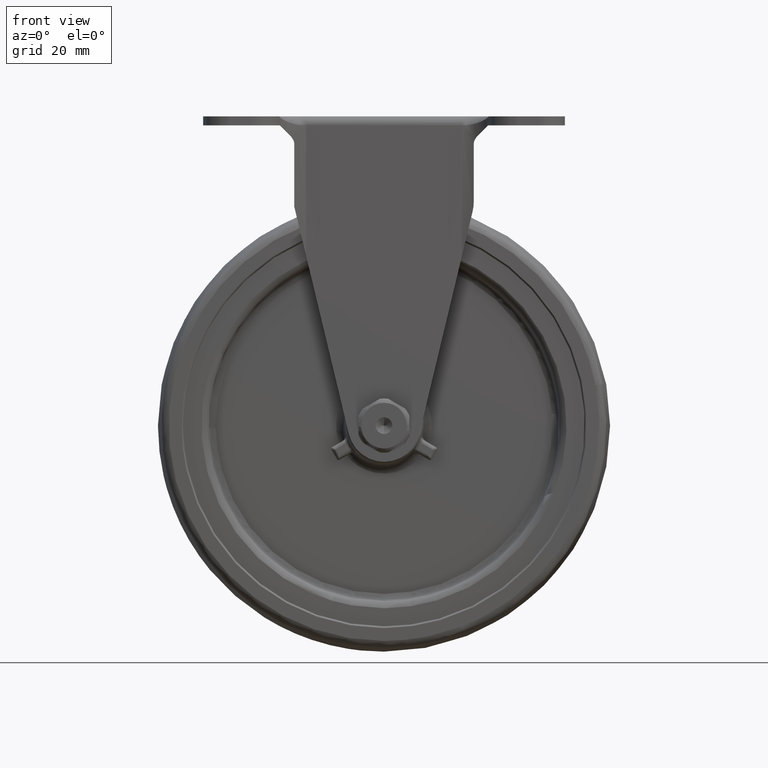
[diagram: clean part render]
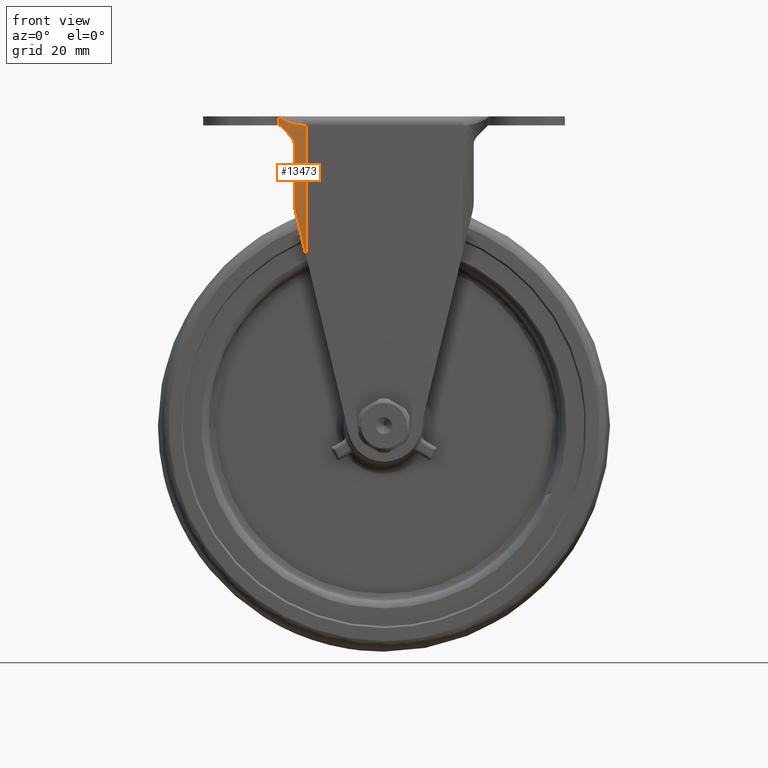
[diagram: same view with one face highlighted and labeled with its STEP entity id]
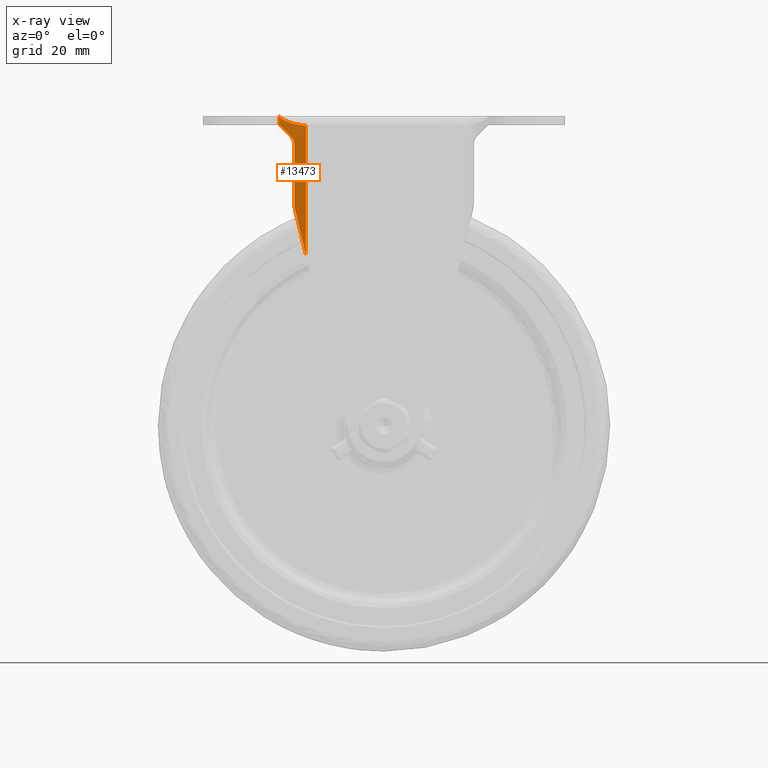
[diagram: x-ray of the same camera — body ghosted, the highlighted face saturated]
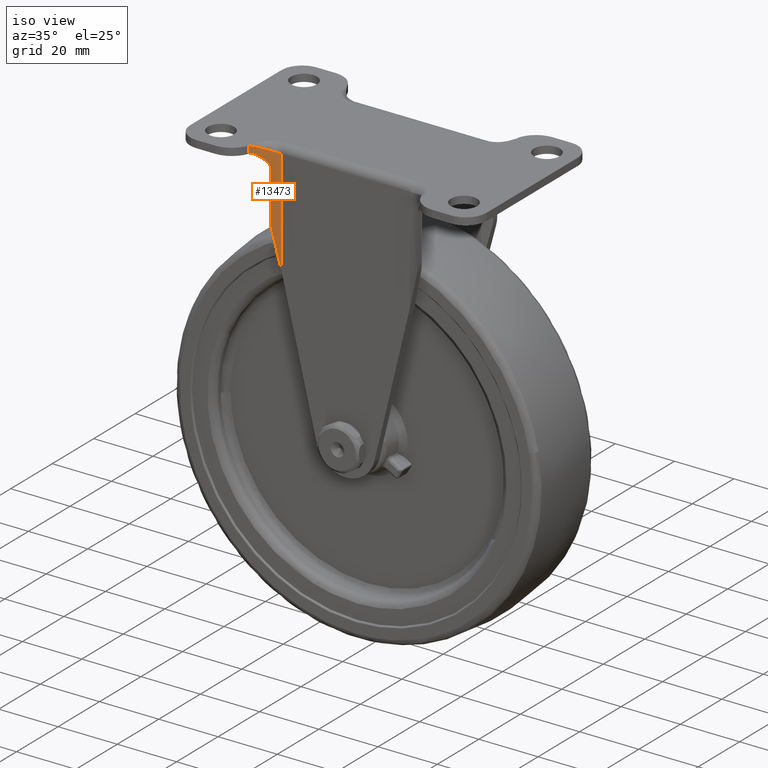
[diagram: same view with one face highlighted and labeled with its STEP entity id]
A machine part, front view. The second image highlights one B-rep face of the part: STEP entity #13473.
The next image is the same camera in x-ray: the body ghosted, the highlighted face saturated — about 0% of this face is hidden behind the body in this view.
A second angle (iso view) of the same face is appended — the face is thin or edge-on in the first view.
In plain terms, the highlighted face is a freeform B-spline surface patch.
Its self-contained STEP definition (entity closure, byte-faithful):
#11462=CARTESIAN_POINT('',(-21.590029999999999,-18.499980000000001,83.0));
#11463=VERTEX_POINT('',#11462);
#11523=CARTESIAN_POINT('',(-29.102522470268148,-23.749987839254249,85.500000000000000));
#11524=VERTEX_POINT('',#11523);
#11537=CARTESIAN_POINT('',(-21.590029999999992,-18.499980000000001,83.000000000000071));
#11538=CARTESIAN_POINT('',(-21.711790608555809,-18.501588318084981,83.001071944880422));
#11539=CARTESIAN_POINT('',(-21.957925617727291,-18.504839479452318,83.003238845703990));
#11540=CARTESIAN_POINT('',(-22.330039604647229,-18.531522087400241,83.020289844134496));
#11541=CARTESIAN_POINT('',(-22.708002058329591,-18.575317830792009,83.047366779202406));
#11542=CARTESIAN_POINT('',(-23.090834311900029,-18.638778779225191,83.085521736473652));
#11543=CARTESIAN_POINT('',(-23.477458401260730,-18.722395524389370,83.134462313424891));
#11544=CARTESIAN_POINT('',(-23.866694689315480,-18.827174957108369,83.194268279878472));
#11545=CARTESIAN_POINT('',(-24.257260963203748,-18.953914605488460,83.264917180128577));
#11546=CARTESIAN_POINT('',(-24.647773016911749,-19.103391515665091,83.346412528086276));
#11547=CARTESIAN_POINT('',(-25.036742129000199,-19.276294545326479,83.438760427634080));
#11548=CARTESIAN_POINT('',(-25.422588906525231,-19.473237677788159,83.541929177025267));
#11549=CARTESIAN_POINT('',(-25.803598389874811,-19.694709858200500,83.656041207139921));
#11550=CARTESIAN_POINT('',(-26.171564251635520,-19.936892461380381,83.778446252098888));
#11551=CARTESIAN_POINT('',(-26.536839095062650,-20.207211443322880,83.914755119424996));
#11552=CARTESIAN_POINT('',(-26.907991638695719,-20.516212963182920,84.069057689836114));
#11553=CARTESIAN_POINT('',(-27.295813077706480,-20.883171991800101,84.247583182257543));
#11554=CARTESIAN_POINT('',(-27.691465603477859,-21.313842147512229,84.450509726631850));
#11555=CARTESIAN_POINT('',(-28.084961404877099,-21.813354181165479,84.677786206549172));
#11556=CARTESIAN_POINT('',(-28.462905218071000,-22.386517550834618,84.929512542635322));
#11557=CARTESIAN_POINT('',(-28.817382770894469,-23.034333505773350,85.205377335458110));
#11558=CARTESIAN_POINT('',(-29.005317722470782,-23.506019710126861,85.399562488614876));
#11559=CARTESIAN_POINT('',(-29.102522470268241,-23.749987839254260,85.500000000000014));
#11560=B_SPLINE_CURVE_WITH_KNOTS('',3,(#11537,#11538,#11539,#11540,#11541,#11542,#11543,#11544,#11545,#11546,#11547,#11548,#11549,#11550,#11551,#11552,#11553,#11554,#11555,#11556,#11557,#11558,#11559),.UNSPECIFIED.,.F.,.U.,(4,1,1,1,1,1,1,1,1,1,1,1,1,1,1,1,1,1,1,1,4),(0.0,0.036053215480941,0.072880372628839,0.110510695221453,0.148971575634153,0.188288669687839,0.228485993177242,0.269586018274149,0.311609768390061,0.354576910422843,0.398505843601442,0.443413784383948,0.489316847060858,0.533824170526777,0.583836981097427,0.639366947641970,0.700422409312031,0.767009461386648,0.839132627595551,0.916795294157596,1.0),.UNSPECIFIED.);
#11561=EDGE_CURVE('',#11463,#11524,#11560,.T.);
#11951=CARTESIAN_POINT('',(-25.664111917669100,-19.615079381391151,79.876114241868905));
#11952=VERTEX_POINT('',#11951);
#11953=CARTESIAN_POINT('',(-24.800000000000001,-19.172218227186949,77.769462372252789));
#11954=VERTEX_POINT('',#11953);
#11955=CARTESIAN_POINT('',(-25.664111917669100,-19.615079381391151,79.876114241868905));
#11956=CARTESIAN_POINT('',(-25.533815606530879,-19.537977637364168,79.744009672459200));
#11957=CARTESIAN_POINT('',(-25.414883821789179,-19.472544672048901,79.599070921622371));
#11958=CARTESIAN_POINT('',(-25.255767939332149,-19.389005814152569,79.361927404315395));
#11959=CARTESIAN_POINT('',(-25.205955322942099,-19.363611190075051,79.279574838560350));
#11960=CARTESIAN_POINT('',(-25.136516514887049,-19.328989668614991,79.150850292570254));
#11961=CARTESIAN_POINT('',(-25.114246999675039,-19.318027270639458,79.107043882746652));
#11962=CARTESIAN_POINT('',(-25.072060913543670,-19.297479657431861,79.018758900925377));
#11963=CARTESIAN_POINT('',(-25.052070505921851,-19.287857325730929,78.974149712814906));
#11964=CARTESIAN_POINT('',(-24.957623290488790,-19.242823369235509,78.748800989990514));
#11965=CARTESIAN_POINT('',(-24.899530933534450,-19.216499719834221,78.561225387913964));
#11966=CARTESIAN_POINT('',(-24.850047732467662,-19.194338209384629,78.317419680522889));
#11967=CARTESIAN_POINT('',(-24.841301486644841,-19.190445061332909,78.268073137722837));
#11968=CARTESIAN_POINT('',(-24.826303493588281,-19.183792387987680,78.169010462133627));
#11969=CARTESIAN_POINT('',(-24.820054226272241,-19.181033805063642,78.119356443333317));
#11970=CARTESIAN_POINT('',(-24.805040284980208,-19.174420055928319,77.970029086214751));
#11971=CARTESIAN_POINT('',(-24.799999999999990,-19.172218227186949,77.869991534281525));
#11972=CARTESIAN_POINT('',(-24.800000000000001,-19.172218227186949,77.769462372252789));
#11973=B_SPLINE_CURVE_WITH_KNOTS('',3,(#11955,#11956,#11957,#11958,#11959,#11960,#11961,#11962,#11963,#11964,#11965,#11966,#11967,#11968,#11969,#11970,#11971,#11972),.UNSPECIFIED.,.F.,.U.,(4,2,2,2,2,2,2,2,4),(0.0,0.250000000000001,0.375000000000001,0.437500000000000,0.499999999999999,0.749999999999998,0.812499999999999,0.874999999999999,1.0),.UNSPECIFIED.);
#11974=EDGE_CURVE('',#11952,#11954,#11973,.T.);
#12213=CARTESIAN_POINT('',(-21.590029999999999,-18.499980000000001,47.121603146489903));
#12214=VERTEX_POINT('',#12213);
#12215=CARTESIAN_POINT('',(-24.800000000000001,-19.172218624724049,60.500000000000000));
#12216=VERTEX_POINT('',#12215);
#12217=CARTESIAN_POINT('',(-21.590029999999999,-18.499980000000001,47.121603146489903));
#12218=CARTESIAN_POINT('',(-23.265406242576688,-18.499980000000001,54.104173560116323));
#12219=CARTESIAN_POINT('',(-24.800000000000001,-19.172218624724049,60.500000000000000));
#12227=(BOUNDED_CURVE()B_SPLINE_CURVE(2,(#12217,#12218,#12219),.UNSPECIFIED.,.F.,.U.)CURVE()GEOMETRIC_REPRESENTATION_ITEM()QUASI_UNIFORM_CURVE()RATIONAL_B_SPLINE_CURVE((1.0,0.978767125497559,1.0))REPRESENTATION_ITEM(''));
#12228=EDGE_CURVE('',#12214,#12216,#12227,.T.);
#12279=CARTESIAN_POINT('',(-24.800000000000001,-19.172218624724049,60.500000000000000));
#12280=CARTESIAN_POINT('',(-24.800000000000001,-19.172218227186949,77.769462372252789));
#12281=QUASI_UNIFORM_CURVE('',1,(#12279,#12280),.UNSPECIFIED.,.F.,.U.);
#12282=EDGE_CURVE('',#12216,#11954,#12281,.T.);
#12315=CARTESIAN_POINT('',(-28.745237669189049,-22.921851549150698,83.0));
#12316=VERTEX_POINT('',#12315);
#12317=CARTESIAN_POINT('',(-25.664111917669189,-19.615079381391109,79.876114241868805));
#12318=CARTESIAN_POINT('',(-27.691559653103024,-20.814804492255426,81.931698991356058));
#12319=CARTESIAN_POINT('',(-28.745237669189120,-22.921851549150698,82.999999999999886));
#12327=(BOUNDED_CURVE()B_SPLINE_CURVE(2,(#12317,#12318,#12319),.UNSPECIFIED.,.F.,.U.)CURVE()GEOMETRIC_REPRESENTATION_ITEM()QUASI_UNIFORM_CURVE()RATIONAL_B_SPLINE_CURVE((1.0,0.959272026097969,1.0))REPRESENTATION_ITEM(''));
#12328=EDGE_CURVE('',#11952,#12316,#12327,.T.);
#12980=CARTESIAN_POINT('',(-29.102524228969649,-23.750001552712749,83.0));
#12981=VERTEX_POINT('',#12980);
#12982=CARTESIAN_POINT('',(-28.745237669189049,-22.921851549150698,83.0));
#12983=CARTESIAN_POINT('',(-28.947259885844428,-23.325840144237215,83.0));
#12984=CARTESIAN_POINT('',(-29.102524228969649,-23.750001552712749,83.0));
#12992=(BOUNDED_CURVE()B_SPLINE_CURVE(2,(#12982,#12983,#12984),.UNSPECIFIED.,.F.,.U.)CURVE()GEOMETRIC_REPRESENTATION_ITEM()QUASI_UNIFORM_CURVE()RATIONAL_B_SPLINE_CURVE((1.0,0.998409895108221,1.0))REPRESENTATION_ITEM(''));
#12993=EDGE_CURVE('',#12316,#12981,#12992,.T.);
#13441=CARTESIAN_POINT('',(-29.176619241649590,-23.961542748759271,46.162143225152150));
#13442=CARTESIAN_POINT('',(-29.176619241649590,-23.961542748759271,86.483446419371205));
#13443=CARTESIAN_POINT('',(-27.236693996313523,-18.163717339178049,46.162143225152150));
#13444=CARTESIAN_POINT('',(-27.236693996313523,-18.163717339178049,86.483446419371205));
#13445=CARTESIAN_POINT('',(-21.132920072259552,-18.513050019465478,46.162143225152157));
#13446=CARTESIAN_POINT('',(-21.132920072259552,-18.513050019465478,86.483446419371205));
#13454=(BOUNDED_SURFACE()B_SPLINE_SURFACE(1,2,((#13441,#13443,#13445),(#13442,#13444,#13446)),.UNSPECIFIED.,.F.,.F.,.U.)B_SPLINE_SURFACE_WITH_KNOTS((2,2),(3,3),(0.0,40.321303194219063),(0.0,10.827564788910911),.UNSPECIFIED.)GEOMETRIC_REPRESENTATION_ITEM()RATIONAL_B_SPLINE_SURFACE(((1.0,0.791676536126635,0.992795214612556),(1.0,0.791676536126635,0.992795214612556)))REPRESENTATION_ITEM('')SURFACE());
#13455=CARTESIAN_POINT('',(-21.590029999999999,-18.499980000000001,47.121603146489903));
#13456=CARTESIAN_POINT('',(-21.590029999999999,-18.499980000000001,83.0));
#13457=QUASI_UNIFORM_CURVE('',1,(#13455,#13456),.UNSPECIFIED.,.F.,.U.);
#13458=EDGE_CURVE('',#12214,#11463,#13457,.T.);
#13459=ORIENTED_EDGE('',*,*,#13458,.T.);
#13460=ORIENTED_EDGE('',*,*,#11561,.T.);
#13461=CARTESIAN_POINT('',(-29.102524228969649,-23.750001552712749,83.0));
#13462=CARTESIAN_POINT('',(-29.102522470268148,-23.749987839254249,85.500000000000000));
#13463=QUASI_UNIFORM_CURVE('',1,(#13461,#13462),.UNSPECIFIED.,.F.,.U.);
#13464=EDGE_CURVE('',#12981,#11524,#13463,.T.);
#13465=ORIENTED_EDGE('',*,*,#13464,.F.);
#13466=ORIENTED_EDGE('',*,*,#12993,.F.);
#13467=ORIENTED_EDGE('',*,*,#12328,.F.);
#13468=ORIENTED_EDGE('',*,*,#11974,.T.);
#13469=ORIENTED_EDGE('',*,*,#12282,.F.);
#13470=ORIENTED_EDGE('',*,*,#12228,.F.);
#13471=EDGE_LOOP('',(#13459,#13460,#13465,#13466,#13467,#13468,#13469,#13470));
#13472=FACE_OUTER_BOUND('',#13471,.T.);
#13473=ADVANCED_FACE('',(#13472),#13454,.F.);